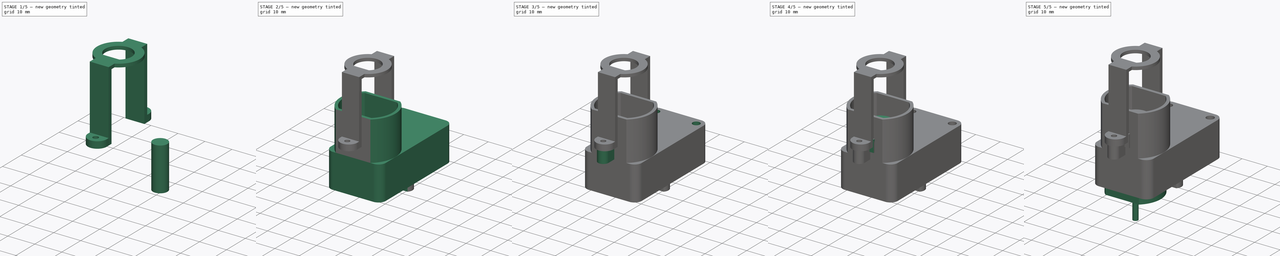
[diagram: build sequence overview — one tinted view per stage of 5, left to right]
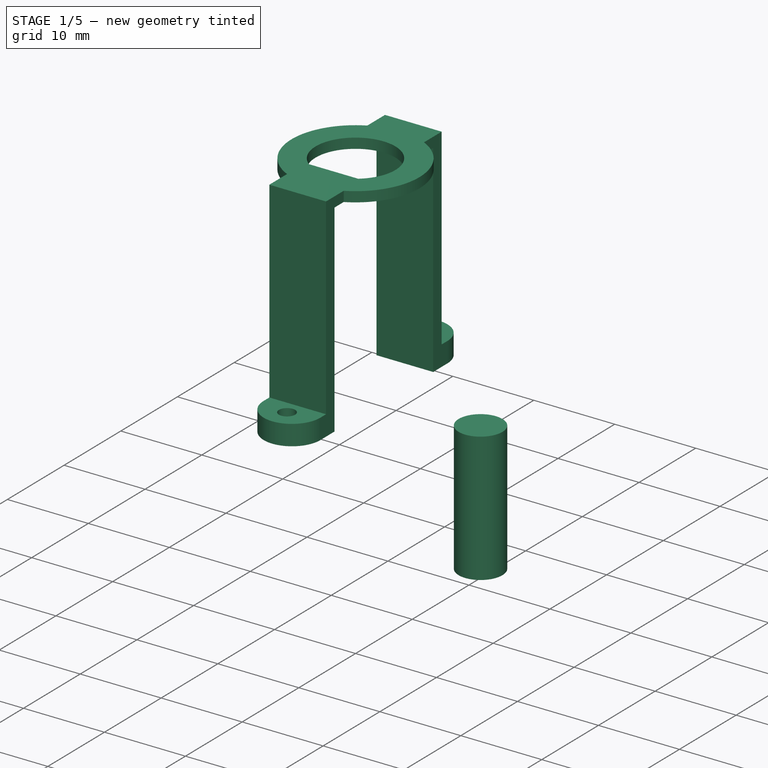
[diagram: stage 1 of 5 — iso view after this stage's code; geometry added in this stage tinted green]
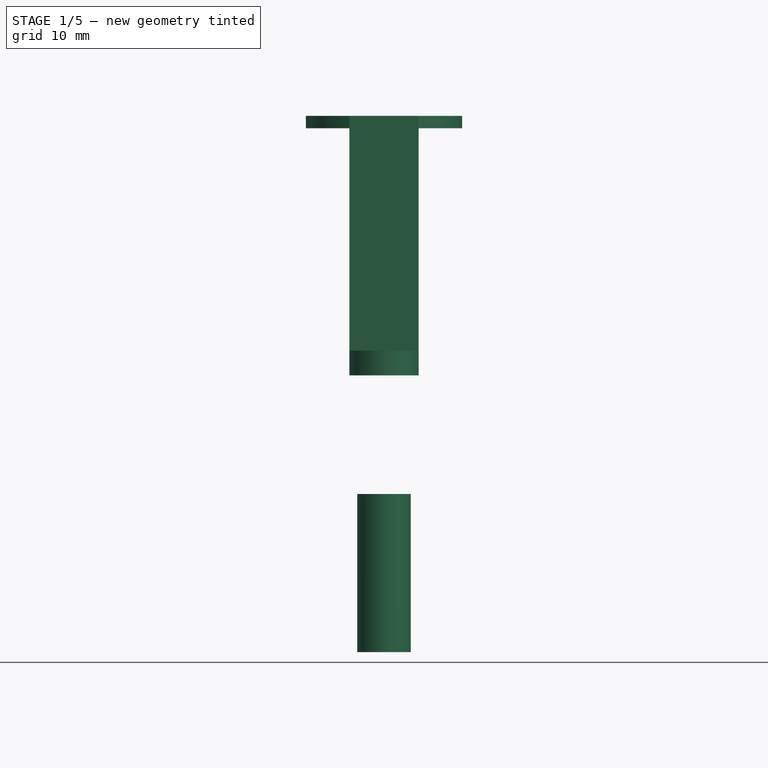
[diagram: stage 1 of 5 — front view after this stage's code; geometry added in this stage tinted green]
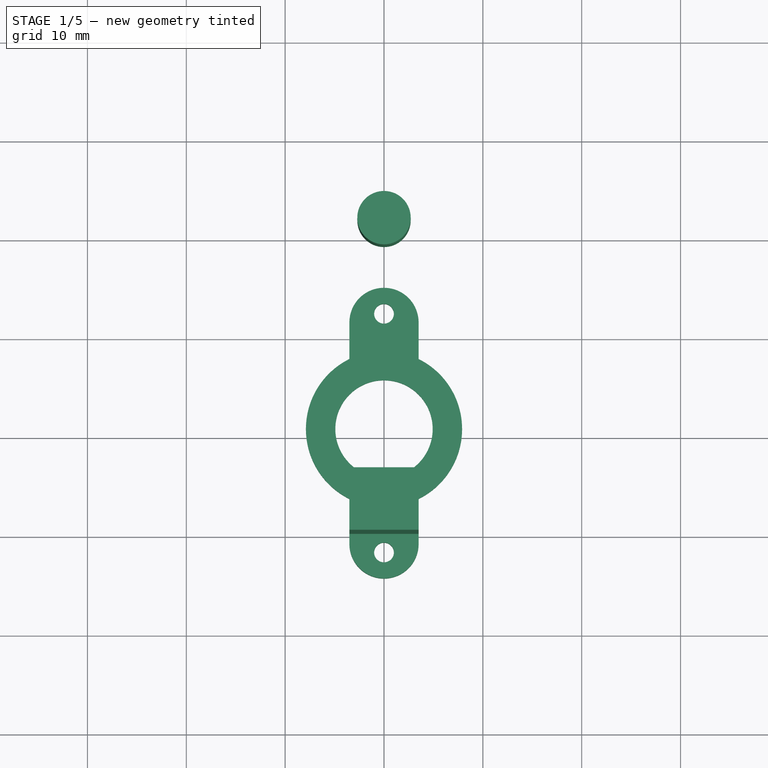
[diagram: stage 1 of 5 — top view after this stage's code; geometry added in this stage tinted green]
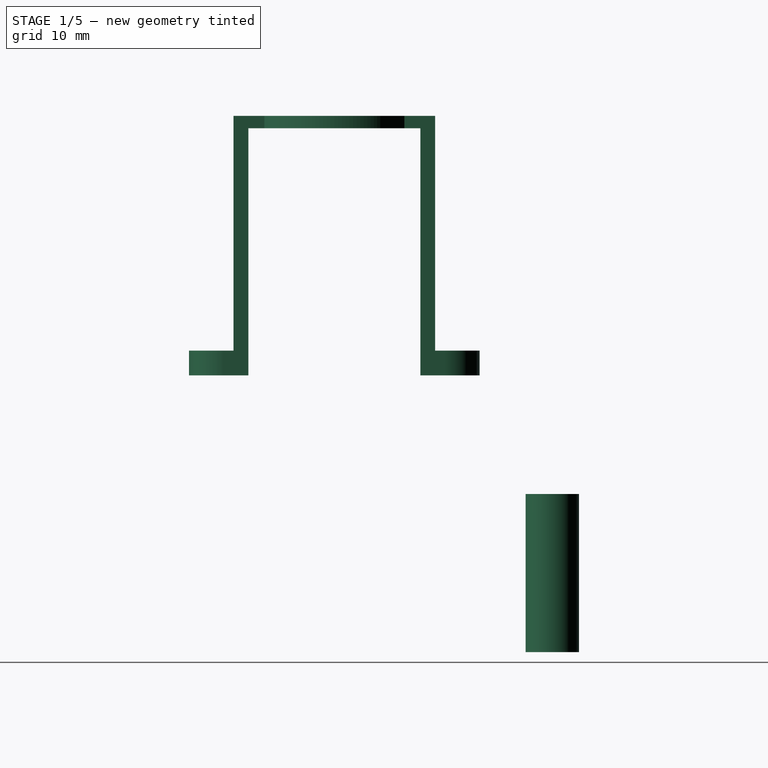
[diagram: stage 1 of 5 — right view after this stage's code; geometry added in this stage tinted green]
FCSTD DOCUMENT  (FreeCAD 0.21R29865 (Git))
Label: Yellow_gearmotor_L
License: Creative Commons Attribution-NonCommercial-ShareAlike
LicenseURL: http://creativecommons.org/licenses/by-nc-sa/4.0/
objects: Sketcher::SketchObject×15, PartDesign::Pad×10, PartDesign::Body×6, PartDesign::Pocket×5, App::DocumentObjectGroup×2, PartDesign::Fillet×1, App::Part×1
note: 53 computed .brp shape members not serialized (recipe doc carries the construction recipe); baked Part::Feature solids carry a one-line shape summary decoded from their .brp

FEATURE [PartDesign::Body] Body003  label="Yellow"
  Group = -> [Sketch005,Pad004,Sketch006,Pad005,Sketch007,Pad006,Sketch008,Pocket001,Sketch009,Pocket002,Sketch010,Pad007]
  Origin = -> Origin004
  Tip = -> Pad007
FEATURE [Sketcher::SketchObject] Sketch011
  FullyConstrained = true
  MapMode = 5
  Support = -> [XY_Plane005]
  sketch-geometry (1):
    g0: Circle CenterX=0 CenterY=22.05 CenterZ=0 NormalX=0 NormalY=0 NormalZ=1 AngleXU=0 Radius=2.7
  constraints (3):
    c: PointOnObject(g0,g-2)
    c: Diameter(g0) = 5.4
    c: DistanceY(g0) = 22.05
FEATURE [PartDesign::Pad] Pad008
  Direction = (0,0,1)
  Length = 16
  Length2 = 10
  Profile = -> Sketch011
  ReferenceAxis = -> Sketch011 [N_Axis]
  Reversed = true
  Type = 0
FEATURE [PartDesign::Body] Body004  label="Pink"
  Group = -> [Sketch011,Pad008,Sketch012,Pocket003]
  Origin = -> Origin005
  Tip = -> Pocket003
FEATURE [Sketcher::SketchObject] Sketch013
  FullyConstrained = true
  MapMode = 5
  Placement = pos=(0,0,0) rot=(0.57735,0.57735,0.57735;2.0944rad)
  Support = -> [YZ_Plane006]
  sketch-geometry (14):
    g0: LineSegment StartX=-8.7 StartY=37 StartZ=0 EndX=-8.7 EndY=12 EndZ=0
    g1: LineSegment StartX=-8.7 StartY=12 StartZ=0 EndX=-14.7 EndY=12 EndZ=0
    g2: LineSegment StartX=-14.7 StartY=12 StartZ=0 EndX=-14.7 EndY=14.5 EndZ=0
    g3: LineSegment StartX=-14.7 StartY=14.5 StartZ=0 EndX=-10.2 EndY=14.5 EndZ=0
    g4: LineSegment StartX=-10.2 StartY=14.5 StartZ=0 EndX=-10.2 EndY=38.25 EndZ=0
    g5: LineSegment StartX=-10.2 StartY=38.25 StartZ=0 EndX=10.2 EndY=38.25 EndZ=0
    g6: LineSegment StartX=10.2 StartY=38.25 StartZ=0 EndX=10.2 EndY=14.5 EndZ=0
    g7: LineSegment StartX=10.2 StartY=14.5 StartZ=0 EndX=14.7 EndY=14.5 EndZ=0
    g8: LineSegment StartX=14.7 StartY=14.5 StartZ=0 EndX=14.7 EndY=12 EndZ=0
    g9: LineSegment StartX=14.7 StartY=12 StartZ=0 EndX=8.7 EndY=12 EndZ=0
    g10: LineSegment StartX=8.7 StartY=12 StartZ=0 EndX=8.7 EndY=37 EndZ=0
    g11: LineSegment StartX=8.7 StartY=37 StartZ=0 EndX=-8.7 EndY=37 EndZ=0
    g12: LineSegment StartX=-10.2 StartY=14.5 StartZ=0 EndX=-8.7 EndY=14.5 EndZ=0
    g13: LineSegment StartX=10.2 StartY=14.5 StartZ=0 EndX=8.7 EndY=14.5 EndZ=0
  constraints (41):
    c: Vertical(g0)
    c: Coincident(g0,g1)
    c: Horizontal(g1)
    c: Coincident(g1,g2)
    c: Coincident(g2,g3)
    c: Horizontal(g3)
    c: Coincident(g3,g4)
    c: Vertical(g4)
    c: Coincident(g4,g5)
    c: Horizontal(g5)
    c: Coincident(g5,g6)
    c: Vertical(g6)
    c: Coincident(g6,g7)
    c: Horizontal(g7)
    c: Coincident(g7,g8)
    c: Vertical(g8)
    c: Coincident(g8,g9)
    c: Horizontal(g9)
    c: Coincident(g9,g10)
    c: Vertical(g10)
    c: Coincident(g10,g11)
    c: Coincident(g11,g0)
    c: Horizontal(g11)
    c: Vertical(g2)
    c: Equal(g2,g8)
    c: Equal(g9,g1)
    c: Equal(g3,g7)
    c: Symmetric(g9,g0,g-2)
    c: DistanceY(g8,g8) = 2.5
    c: Coincident(g12,g3)
    c: PointOnObject(g12,g0)
    c: Horizontal(g12)
    c: Coincident(g13,g6)
    c: PointOnObject(g13,g10)
    c: Horizontal(g13)
    c: DistanceX(g12,g12) = 1.5
    c: DistanceX(g0,g9) = 17.4
    c: DistanceY(g10) = 37
    c: DistanceY(g10,g5) = 1.25
    c: DistanceY(g8) = 12
    c: DistanceX(g9,g9) = 6
FEATURE [PartDesign::Pad] Pad009
  Direction = (1,-2e-16,3e-16)
  Length = 15.8
  Length2 = 10
  Midplane = true
  Placement = pos=(0,0,0) rot=(0.57735,0.57735,0.57735;2.0944rad)
  Profile = -> Sketch013
  ReferenceAxis = -> Sketch013 [N_Axis]
  Type = 0
FEATURE [Sketcher::SketchObject] Sketch014
  ExternalGeometry = -> [Pad009]
  FullyConstrained = true
  MapMode = 5
  Placement = pos=(-1.07e-14,1.68e-14,38.25) rot=(0,0,-1;1.5708rad)
  Support = -> [Pad009]
  sketch-geometry (17):
    g0: ArcOfCircle CenterX=0 CenterY=0 CenterZ=0 NormalX=0 NormalY=0 NormalZ=1 AngleXU=0 Radius=4.925 StartAngle=0.665186 EndAngle=5.618
    g1: LineSegment StartX=3.875 StartY=-3.03974 StartZ=0 EndX=3.875 EndY=3.03974 EndZ=0
    g2: GeomPoint X=-4.925 Y=0 Z=0
    g3: ArcOfCircle CenterX=0 CenterY=0 CenterZ=0 NormalX=0 NormalY=0 NormalZ=1 AngleXU=0 Radius=7.9 StartAngle=3.60058 EndAngle=5.8242
    g4: LineSegment StartX=7.08237 StartY=3.5 StartZ=0 EndX=11.2 EndY=3.5 EndZ=0
    g5: LineSegment StartX=14.7 StartY=7.9 StartZ=0 EndX=-14.7 EndY=7.9 EndZ=0
    g6: LineSegment StartX=-11.2 StartY=3.5 StartZ=0 EndX=-7.08237 EndY=3.5 EndZ=0
    g7: LineSegment StartX=7.08237 StartY=-3.5 StartZ=0 EndX=11.2 EndY=-3.5 EndZ=0
    g8: LineSegment StartX=14.7 StartY=-7.9 StartZ=0 EndX=-14.7 EndY=-7.9 EndZ=0
    g9: LineSegment StartX=-11.2 StartY=-3.5 StartZ=0 EndX=-7.08237 EndY=-3.5 EndZ=0
    g10: ArcOfCircle CenterX=0 CenterY=0 CenterZ=0 NormalX=0 NormalY=0 NormalZ=1 AngleXU=0 Radius=7.9 StartAngle=0.458985 EndAngle=2.68261
    g11: ArcOfCircle CenterX=-11.2 CenterY=0 CenterZ=0 NormalX=0 NormalY=0 NormalZ=1 AngleXU=0 Radius=3.5 StartAngle=1.5708 EndAngle=4.71239
    g12: ArcOfCircle CenterX=11.2 CenterY=0 CenterZ=0 NormalX=0 NormalY=0 NormalZ=1 AngleXU=0 Radius=3.5 StartAngle=4.71239 EndAngle=7.85398
    g13: LineSegment StartX=14.7 StartY=-7.9 StartZ=0 EndX=14.7 EndY=7.9 EndZ=0
    g14: LineSegment StartX=-14.7 StartY=7.9 StartZ=0 EndX=-14.7 EndY=-7.9 EndZ=0
    g15: Circle CenterX=-12.075 CenterY=0 CenterZ=0 NormalX=0 NormalY=0 NormalZ=1 AngleXU=0 Radius=1
    g16: Circle CenterX=12.075 CenterY=0 CenterZ=0 NormalX=0 NormalY=0 NormalZ=1 AngleXU=0 Radius=1
  constraints (48):
    c: Coincident(g0,g-1)
    c: Vertical(g1)
    c: Coincident(g0,g1)
    c: Coincident(g0,g1)
    c: Radius(g0) = 4.925
    c: PointOnObject(g2,g0)
    c: PointOnObject(g2,g-1)
    c: DistanceX(g2,g0) = 8.8
    c: Coincident(g3,g0)
    c: Tangent(g3,g-3)
    c: Horizontal(g4)
    c: Horizontal(g5)
    c: Horizontal(g6)
    c: Horizontal(g7)
    c: Horizontal(g8)
    c: Horizontal(g9)
    c: Equal(g8,g5)
    c: Horizontal(g4,g6)
    c: Horizontal(g7,g9)
    c: Coincident(g10,g6)
    c: Coincident(g3,g9)
    c: Equal(g3,g10)
    c: Coincident(g3,g7)
    c: Coincident(g10,g4)
    c: Coincident(g3,g10)
    c: PointOnObject(g11,g-1)
    c: Tangent(g11,g-6)
    c: Tangent(g6,g11) = 1.5708
    c: Coincident(g9,g11)
    c: PointOnObject(g12,g-1)
    c: Tangent(g12,g-5)
    c: Tangent(g4,g12) = 1.5708
    c: Coincident(g7,g12)
    c: Coincident(g13,g8)
    c: Coincident(g13,g5)
    c: Vertical(g13)
    c: Coincident(g14,g5)
    c: Coincident(g14,g8)
    c: Vertical(g7,g12)
    c: DistanceY(g7,g4) = 7
    c: Coincident(g5,g-6)
    c: Coincident(g8,g-5)
    c: DistanceX(g11,g12) = 22.4
    c: PointOnObject(g15,g-1)
    c: Equal(g16,g15)
    c: DistanceX(g15,g16) = 24.15
    c: Symmetric(g15,g16,g-2)
    c: Diameter(g15) = 2
FEATURE [PartDesign::Pocket] Pocket004
  BaseFeature = -> Pad009
  Direction = (4e-16,-6e-16,-1)
  Length = 5
  Length2 = 5
  Placement = pos=(0,0,0) rot=(0.57735,0.57735,0.57735;2.0944rad)
  Profile = -> Sketch014
  ReferenceAxis = -> Sketch014 [N_Axis]
  Type = 1
FEATURE [PartDesign::Body] Body005  label="White"
  Group = -> [Sketch013,Pad009,Sketch014,Pocket004]
  Origin = -> Origin006
  Tip = -> Pocket004
FEATURE [App::DocumentObjectGroup] Group001  label="Box"
  Group = -> [Body003,Body004,Body005]
FEATURE [App::Part] Part  label="Yellow gearmotor L shape"
  Group = -> [Body,Body001,Group,Body002,Group001,Body003,Body004,Body005]
  Origin = -> Origin
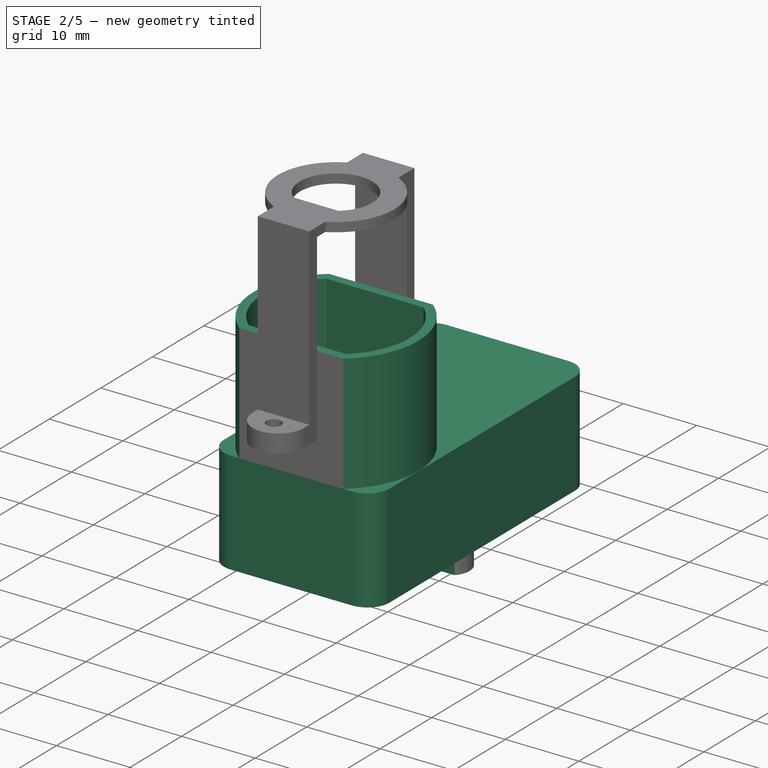
[diagram: stage 2 of 5 — iso view after this stage's code; geometry added in this stage tinted green]
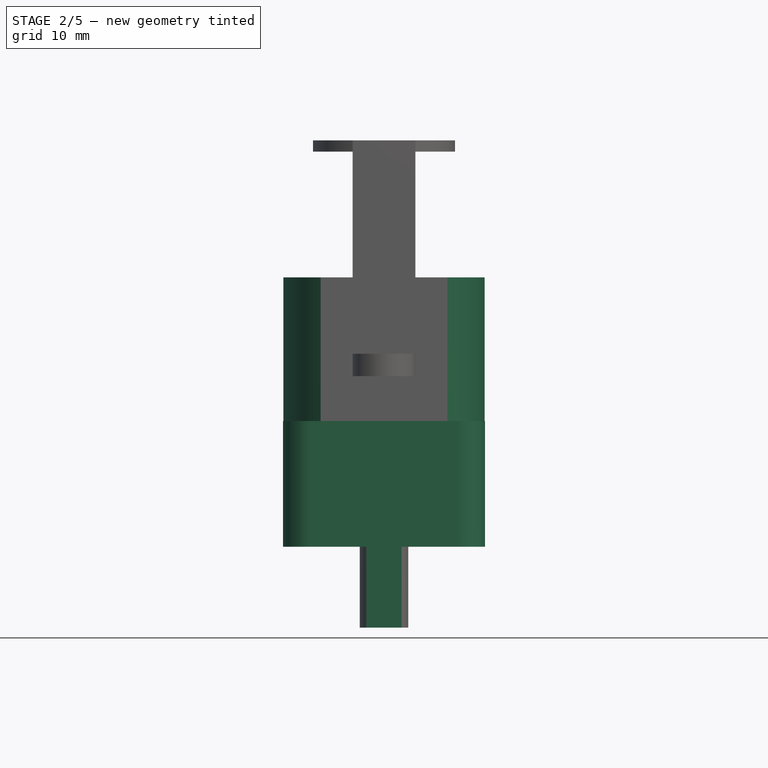
[diagram: stage 2 of 5 — front view after this stage's code; geometry added in this stage tinted green]
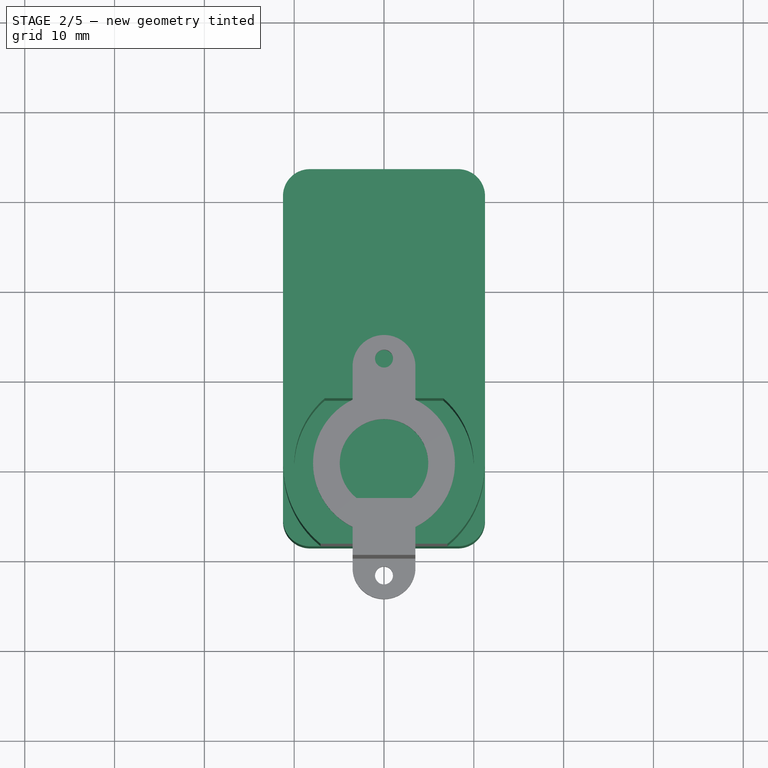
[diagram: stage 2 of 5 — top view after this stage's code; geometry added in this stage tinted green]
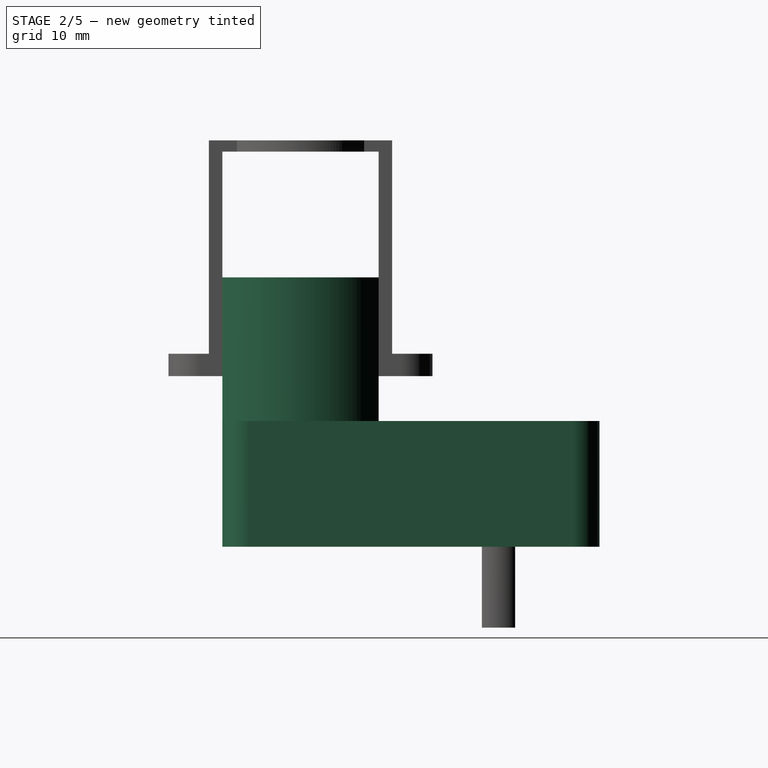
[diagram: stage 2 of 5 — right view after this stage's code; geometry added in this stage tinted green]
FEATURE [PartDesign::Body] Body001  label="Plastic"
  Group = -> [Sketch001,Pad001,Sketch003,Pad003,Sketch004,Fillet,Pocket]
  Origin = -> Origin002
  Placement = pos=(0,0,22) rot=(0,0,1;0rad)
  Tip = -> Fillet
FEATURE [App::DocumentObjectGroup] Group  label="Motor"
  Group = -> [Body,Body001,Body002]
FEATURE [Sketcher::SketchObject] Sketch005
  FullyConstrained = true
  MapMode = 5
  Support = -> [XY_Plane004]
  sketch-geometry (11):
    g0: ArcOfCircle CenterX=-8.25 CenterY=30.3 CenterZ=0 NormalX=0 NormalY=0 NormalZ=1 AngleXU=0 Radius=3 StartAngle=1.5708 EndAngle=3.14159
    g1: LineSegment StartX=-8.25 StartY=33.3 StartZ=0 EndX=8.25 EndY=33.3 EndZ=0
    g2: ArcOfCircle CenterX=8.25 CenterY=30.3 CenterZ=0 NormalX=0 NormalY=0 NormalZ=1 AngleXU=0 Radius=3 StartAngle=0 EndAngle=1.5708
    g3: LineSegment StartX=11.25 StartY=30.3 StartZ=0 EndX=11.25 EndY=-5.7 EndZ=0
    g4: ArcOfCircle CenterX=8.25 CenterY=-5.7 CenterZ=0 NormalX=0 NormalY=0 NormalZ=1 AngleXU=0 Radius=3 StartAngle=4.71239 EndAngle=6.28319
    g5: LineSegment StartX=8.25 StartY=-8.7 StartZ=0 EndX=-8.25 EndY=-8.7 EndZ=0
    g6: ArcOfCircle CenterX=-8.25 CenterY=-5.7 CenterZ=0 NormalX=0 NormalY=0 NormalZ=1 AngleXU=0 Radius=3 StartAngle=3.14159 EndAngle=4.71239
    g7: LineSegment StartX=-11.25 StartY=-5.7 StartZ=0 EndX=-11.25 EndY=30.3 EndZ=0
    g8: GeomPoint X=-11.25 Y=33.3 Z=0
    g9: GeomPoint X=11.25 Y=-8.7 Z=0
    g10: GeomPoint X=0 Y=12.3 Z=0
  constraints (25):
    c: Tangent(g0,g1) = 1.5708
    c: Tangent(g1,g2) = 1.5708
    c: Tangent(g2,g3) = 1.5708
    c: Tangent(g3,g4) = 1.5708
    c: Tangent(g4,g5) = 1.5708
    c: Tangent(g5,g6) = 1.5708
    c: Tangent(g6,g7) = 1.5708
    c: Tangent(g7,g0) = 1.5708
    c: Horizontal(g1)
    c: Horizontal(g5)
    c: Vertical(g3)
    c: Vertical(g7)
    c: Equal(g0,g2)
    c: Equal(g2,g4)
    c: Equal(g4,g6)
    c: PointOnObject(g8,g1)
    c: PointOnObject(g8,g7)
    c: PointOnObject(g9,g3)
    c: PointOnObject(g9,g5)
    c: PointOnObject(g10,g-2)
    c: Symmetric(g0,g4,g10)
    c: DistanceY(g5,g0) = 42
    c: DistanceX(g6,g3) = 22.5
    c: Radius(g2) = 3
    c: DistanceY(g4) = -8.7
FEATURE [PartDesign::Pad] Pad004
  Direction = (0,0,1)
  Length = 14
  Length2 = 10
  Midplane = true
  Profile = -> Sketch005
  ReferenceAxis = -> Sketch005 [N_Axis]
  Type = 0
FEATURE [Sketcher::SketchObject] Sketch006
  AttachmentOffset = pos=(0,0,7) rot=(0,0,1;0rad)
  ExternalGeometry = -> [Pad004]
  FullyConstrained = true
  MapMode = 5
  Placement = pos=(0,0,7) rot=(0,0,1;0rad)
  Support = -> [XY_Plane004]
  sketch-geometry (8):
    g0: ArcOfCircle CenterX=0 CenterY=4.60974e-11 CenterZ=0 NormalX=0 NormalY=0 NormalZ=1 AngleXU=0 Radius=10 StartAngle=2.29353 EndAngle=3.98965
    g1: LineSegment StartX=-6.61438 StartY=7.5 StartZ=0 EndX=6.61438 EndY=7.5 EndZ=0
    g2: LineSegment StartX=-6.61438 StartY=-7.5 StartZ=0 EndX=6.61438 EndY=-7.5 EndZ=0
    g3: ArcOfCircle CenterX=0 CenterY=4.60974e-11 CenterZ=0 NormalX=0 NormalY=0 NormalZ=1 AngleXU=0 Radius=10 StartAngle=5.43512 EndAngle=7.13125
    g4: LineSegment StartX=-7.05337 StartY=8.7 StartZ=0 EndX=7.05337 EndY=8.7 EndZ=0
    g5: LineSegment StartX=7.05337 StartY=-8.7 StartZ=0 EndX=-7.05337 EndY=-8.7 EndZ=0
    g6: ArcOfCircle CenterX=0 CenterY=4.60974e-11 CenterZ=0 NormalX=0 NormalY=0 NormalZ=1 AngleXU=0 Radius=11.2 StartAngle=2.25205 EndAngle=4.03114
    g7: ArcOfCircle CenterX=0 CenterY=4.60974e-11 CenterZ=0 NormalX=0 NormalY=0 NormalZ=1 AngleXU=0 Radius=11.2 StartAngle=5.39364 EndAngle=7.17273
  constraints (26):
    c: PointOnObject(g0,g-2)
    c: Diameter(g0) = 20
    c: Horizontal(g1)
    c: Horizontal(g2)
    c: Coincident(g3,g1)
    c: Coincident(g0,g1)
    c: Equal(g0,g3)
    c: Coincident(g0,g2)
    c: Coincident(g3,g2)
    c: Coincident(g0,g3)
    c: Equal(g2,g1)
    c: DistanceY(g2,g1) = 15
    c: Horizontal(g4)
    c: Horizontal(g5)
    c: Equal(g5,g4)
    c: DistanceY(g5,g4) = 17.4
    c: Coincident(g6,g0)
    c: Coincident(g7,g4)
    c: Coincident(g6,g4)
    c: Equal(g6,g7)
    c: Coincident(g6,g5)
    c: Coincident(g7,g5)
    c: Coincident(g6,g7)
    c: Radius(g7) = 11.2
    c: PointOnObject(g5,g-3)
    c: DistanceY(g0,g-1) = -4.60974e-11
FEATURE [PartDesign::Pad] Pad005
  BaseFeature = -> Pad004
  Direction = (0,0,1)
  Length = 16
  Length2 = 10
  Profile = -> Sketch006
  ReferenceAxis = -> Sketch006 [N_Axis]
  Type = 0
FEATURE [Sketcher::SketchObject] Sketch012
  ExternalGeometry = -> [Pad008]
  FullyConstrained = true
  MapMode = 5
  Placement = pos=(0,0,-16) rot=(1,0,0;3.14159rad)
  Support = -> [Pad008]
  sketch-geometry (11):
    g0: Circle CenterX=0 CenterY=-22.05 CenterZ=0 NormalX=0 NormalY=0 NormalZ=1 AngleXU=0 Radius=1
    g1: LineSegment StartX=-2.5 StartY=-19 StartZ=0 EndX=-2.5 EndY=-20.2 EndZ=0
    g2: LineSegment StartX=-2.5 StartY=-20.2 StartZ=0 EndX=2.5 EndY=-20.2 EndZ=0
    g3: LineSegment StartX=2.5 StartY=-20.2 StartZ=0 EndX=2.5 EndY=-19 EndZ=0
    g4: LineSegment StartX=2.5 StartY=-19 StartZ=0 EndX=-2.5 EndY=-19 EndZ=0
    g5: GeomPoint X=0 Y=-19.6 Z=0
    g6: LineSegment StartX=-2.5 StartY=-23.9 StartZ=0 EndX=-2.5 EndY=-25.1 EndZ=0
    g7: LineSegment StartX=-2.5 StartY=-25.1 StartZ=0 EndX=2.5 EndY=-25.1 EndZ=0
    g8: LineSegment StartX=2.5 StartY=-25.1 StartZ=0 EndX=2.5 EndY=-23.9 EndZ=0
    g9: LineSegment StartX=2.5 StartY=-23.9 StartZ=0 EndX=-2.5 EndY=-23.9 EndZ=0
    g10: GeomPoint X=0 Y=-24.5 Z=0
  constraints (29):
    c: Coincident(g1,g2)
    c: Coincident(g2,g3)
    c: Coincident(g3,g4)
    c: Coincident(g4,g1)
    c: Horizontal(g2)
    c: Horizontal(g4)
    c: Vertical(g1)
    c: Vertical(g3)
    c: Symmetric(g2,g1,g5)
    c: PointOnObject(g5,g-2)
    c: Coincident(g6,g7)
    c: Coincident(g7,g8)
    c: Coincident(g8,g9)
    c: Coincident(g9,g6)
    c: Horizontal(g7)
    c: Horizontal(g9)
    c: Vertical(g6)
    c: Vertical(g8)
    c: Symmetric(g7,g6,g10)
    c: PointOnObject(g10,g-2)
    c: Equal(g3,g8)
    c: Equal(g4,g7)
    c: Diameter(g0) = 2
    c: DistanceY(g0,g2) = 1.85
    c: DistanceY(g8,g0) = 1.85
    c: Coincident(g-3,g0)
    c: DistanceY(g3,g3) = 1.2
    c: DistanceX(g4,g4) = 5
    c: DistanceY(g6,g1) = 3.7
FEATURE [PartDesign::Pocket] Pocket003
  BaseFeature = -> Pad008
  Direction = (0,0,1)
  Length = 9
  Length2 = 5
  Profile = -> Sketch012
  ReferenceAxis = -> Sketch012 [N_Axis]
  Type = 0
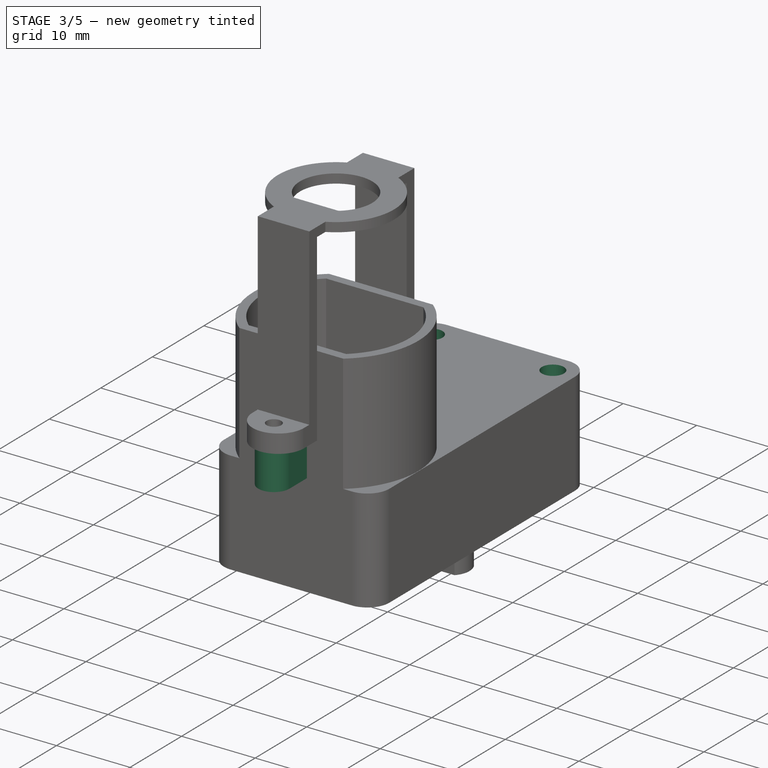
[diagram: stage 3 of 5 — iso view after this stage's code; geometry added in this stage tinted green]
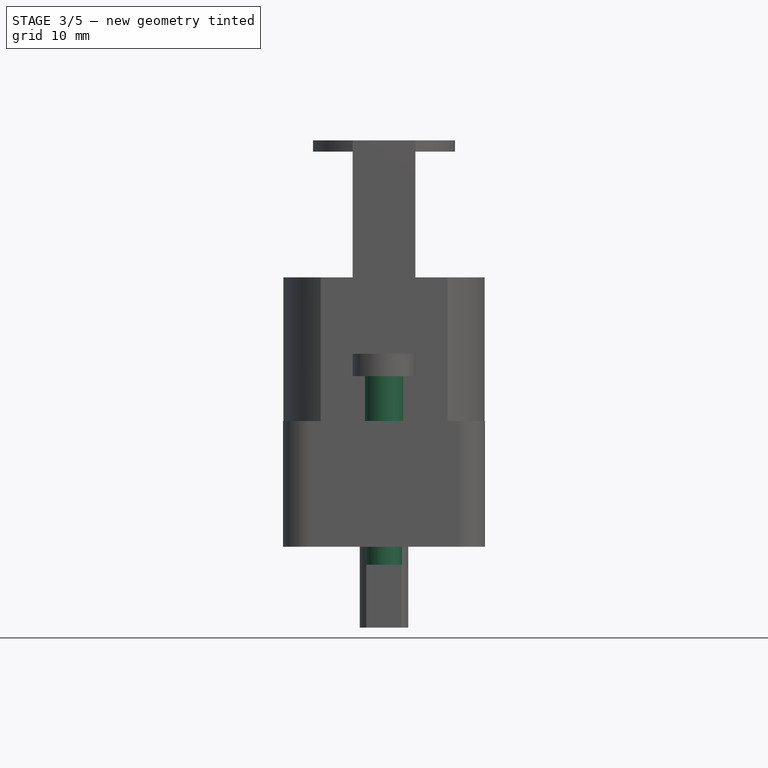
[diagram: stage 3 of 5 — front view after this stage's code; geometry added in this stage tinted green]
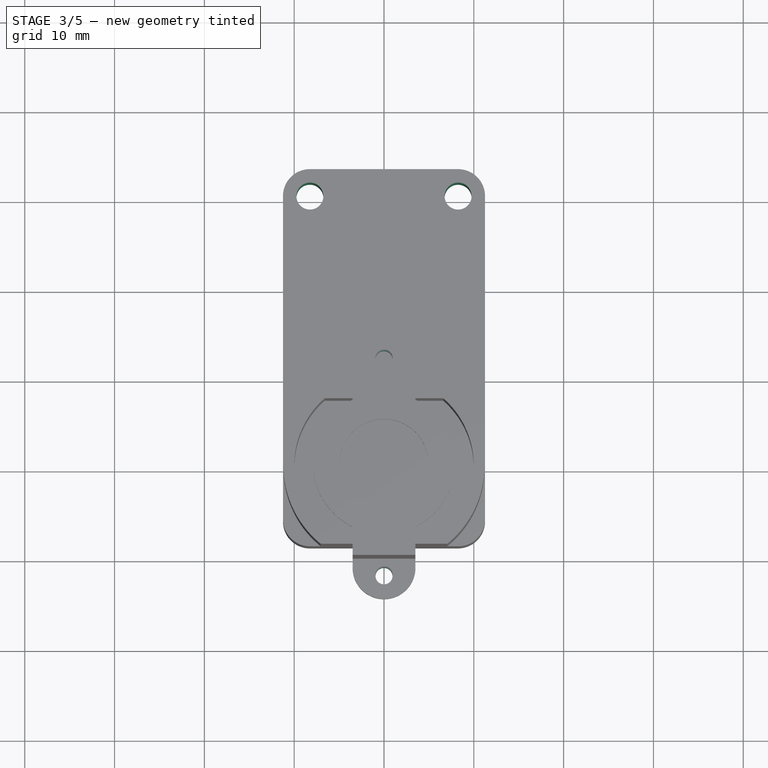
[diagram: stage 3 of 5 — top view after this stage's code; geometry added in this stage tinted green]
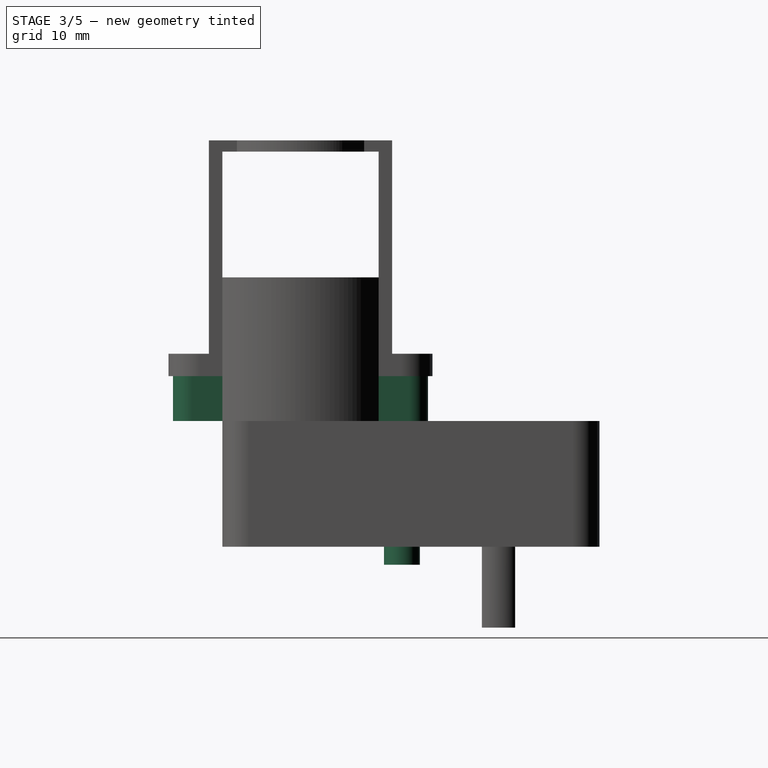
[diagram: stage 3 of 5 — right view after this stage's code; geometry added in this stage tinted green]
FEATURE [Sketcher::SketchObject] Sketch007
  AttachmentOffset = pos=(0,0,7) rot=(0,0,1;0rad)
  ExternalGeometry = -> [Pad005]
  FullyConstrained = true
  MapMode = 5
  Placement = pos=(0,0,7) rot=(0,0,1;0rad)
  Support = -> [XY_Plane004]
  sketch-geometry (10):
    g0: Circle CenterX=0 CenterY=-12.075 CenterZ=0 NormalX=0 NormalY=0 NormalZ=1 AngleXU=0 Radius=0.95
    g1: ArcOfCircle CenterX=0 CenterY=-12.075 CenterZ=0 NormalX=0 NormalY=0 NormalZ=1 AngleXU=0 Radius=2.125 StartAngle=3.14159 EndAngle=6.28319
    g2: LineSegment StartX=2.125 StartY=-12.075 StartZ=0 EndX=2.125 EndY=-8.7 EndZ=0
    g3: LineSegment StartX=2.125 StartY=-8.7 StartZ=0 EndX=-2.125 EndY=-8.7 EndZ=0
    g4: LineSegment StartX=-2.125 StartY=-8.7 StartZ=0 EndX=-2.125 EndY=-12.075 EndZ=0
    g5: Circle CenterX=0 CenterY=12.075 CenterZ=0 NormalX=0 NormalY=0 NormalZ=1 AngleXU=0 Radius=0.95
    g6: ArcOfCircle CenterX=0 CenterY=12.075 CenterZ=0 NormalX=0 NormalY=0 NormalZ=1 AngleXU=0 Radius=2.125 StartAngle=4e-16 EndAngle=3.14159
    g7: LineSegment StartX=-2.125 StartY=12.075 StartZ=0 EndX=-2.125 EndY=8.7 EndZ=0
    g8: LineSegment StartX=-2.125 StartY=8.7 StartZ=0 EndX=2.125 EndY=8.7 EndZ=0
    g9: LineSegment StartX=2.125 StartY=8.7 StartZ=0 EndX=2.125 EndY=12.075 EndZ=0
  constraints (28):
    c: PointOnObject(g0,g-2)
    c: Coincident(g1,g0)
    c: PointOnObject(g2,g-4)
    c: Vertical(g2)
    c: Coincident(g2,g3)
    c: PointOnObject(g3,g-4)
    c: Coincident(g3,g4)
    c: Vertical(g4)
    c: Tangent(g1,g2) = -1.5708
    c: Diameter(g0) = 1.9
    c: Radius(g1) = 2.125
    c: DistanceY(g2,g2) = 3.375
    c: PointOnObject(g5,g-2)
    c: Coincident(g6,g5)
    c: PointOnObject(g7,g-3)
    c: Coincident(g7,g8)
    c: PointOnObject(g8,g-3)
    c: Coincident(g8,g9)
    c: Vertical(g7)
    c: Equal(g5,g0)
    c: Equal(g1,g6)
    c: Vertical(g9)
    c: Coincident(g6,g7)
    c: Tangent(g6,g9) = -1.5708
    c: Equal(g2,g9)
    c: Tangent(g1,g4) = -1.5708
    c: Horizontal(g6,g6)
    c: DistanceY(g0,g5) = 24.15
FEATURE [PartDesign::Pad] Pad006
  BaseFeature = -> Pad005
  Direction = (0,0,1)
  Length = 5
  Length2 = 10
  Profile = -> Sketch007
  ReferenceAxis = -> Sketch007 [N_Axis]
  Type = 0
FEATURE [Sketcher::SketchObject] Sketch008
  ExternalGeometry = -> [Pad006]
  FullyConstrained = true
  MapMode = 5
  Support = -> [XY_Plane004]
  sketch-geometry (1):
    g0: Circle CenterX=0 CenterY=22.05 CenterZ=0 NormalX=0 NormalY=0 NormalZ=1 AngleXU=0 Radius=2.75
  constraints (4):
    c: PointOnObject(g0,g-2)
    c: Diameter(g0) = 5.5
    c: DistanceY(g0,g-3) = 11.25
    c: DistanceY(g0) = 22.05
FEATURE [PartDesign::Pocket] Pocket001
  BaseFeature = -> Pad006
  Direction = (0,0,-1)
  Length = 5
  Length2 = 5
  Profile = -> Sketch008
  ReferenceAxis = -> Sketch008 [N_Axis]
  Type = 2
FEATURE [Sketcher::SketchObject] Sketch009
  ExternalGeometry = -> [Pocket001]
  FullyConstrained = true
  MapMode = 5
  Support = -> [XY_Plane004]
  sketch-geometry (2):
    g0: Circle CenterX=-8.25 CenterY=30.3 CenterZ=0 NormalX=0 NormalY=0 NormalZ=1 AngleXU=0 Radius=1.5
    g1: Circle CenterX=8.25 CenterY=30.3 CenterZ=0 NormalX=0 NormalY=0 NormalZ=1 AngleXU=0 Radius=1.5
  constraints (4):
    c: Coincident(g0,g-3)
    c: Coincident(g1,g-4)
    c: Equal(g1,g0)
    c: Diameter(g1) = 3
FEATURE [PartDesign::Pocket] Pocket002
  BaseFeature = -> Pocket001
  Direction = (0,0,-1)
  Length = 5
  Length2 = 5
  Midplane = true
  Profile = -> Sketch009
  ReferenceAxis = -> Sketch009 [N_Axis]
  Type = 1
FEATURE [Sketcher::SketchObject] Sketch010
  AttachmentOffset = pos=(0,0,-7) rot=(0,0,1;0rad)
  ExternalGeometry = -> [Pocket002]
  FullyConstrained = true
  MapMode = 5
  Placement = pos=(0,0,-7) rot=(0,0,1;0rad)
  Support = -> [XY_Plane004]
  sketch-geometry (1):
    g0: Circle CenterX=0 CenterY=11.3 CenterZ=0 NormalX=0 NormalY=0 NormalZ=1 AngleXU=0 Radius=2
  constraints (3):
    c: PointOnObject(g0,g-2)
    c: Diameter(g0) = 4
    c: DistanceY(g-3,g0) = 20
FEATURE [PartDesign::Pad] Pad007
  BaseFeature = -> Pocket002
  Direction = (0,0,1)
  Length = 2
  Length2 = 10
  Profile = -> Sketch010
  ReferenceAxis = -> Sketch010 [N_Axis]
  Reversed = true
  Type = 0
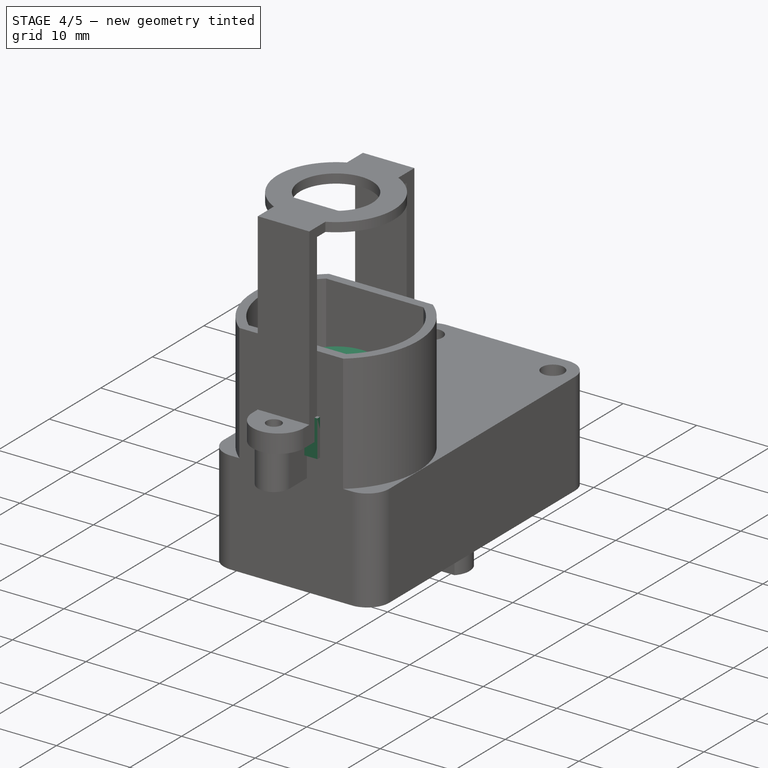
[diagram: stage 4 of 5 — iso view after this stage's code; geometry added in this stage tinted green]
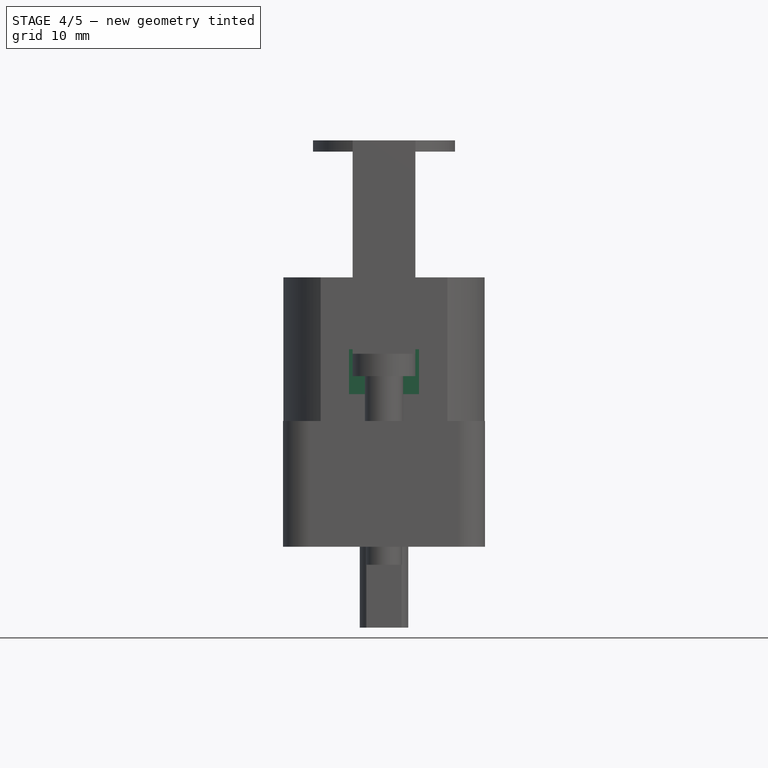
[diagram: stage 4 of 5 — front view after this stage's code; geometry added in this stage tinted green]
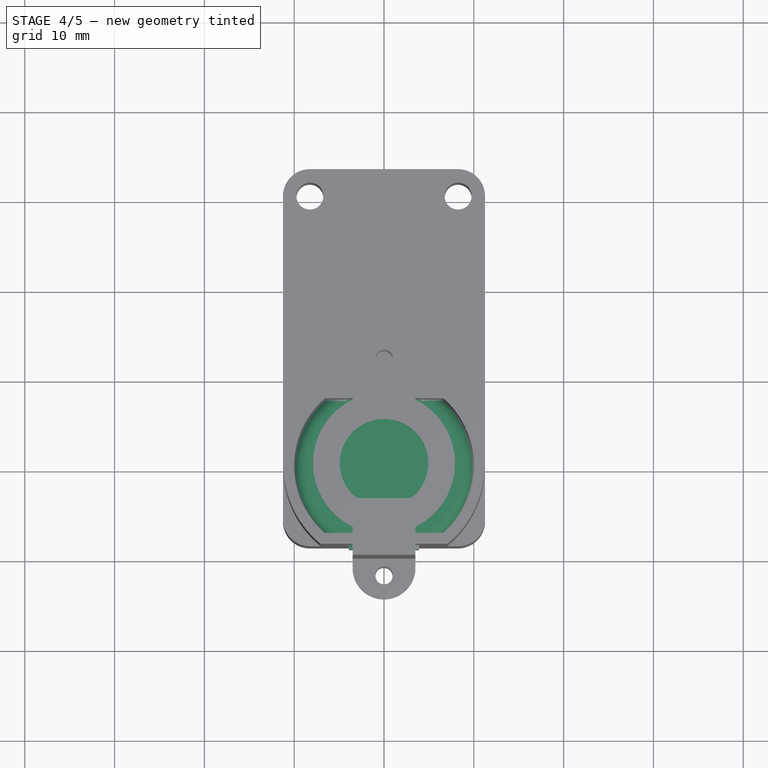
[diagram: stage 4 of 5 — top view after this stage's code; geometry added in this stage tinted green]
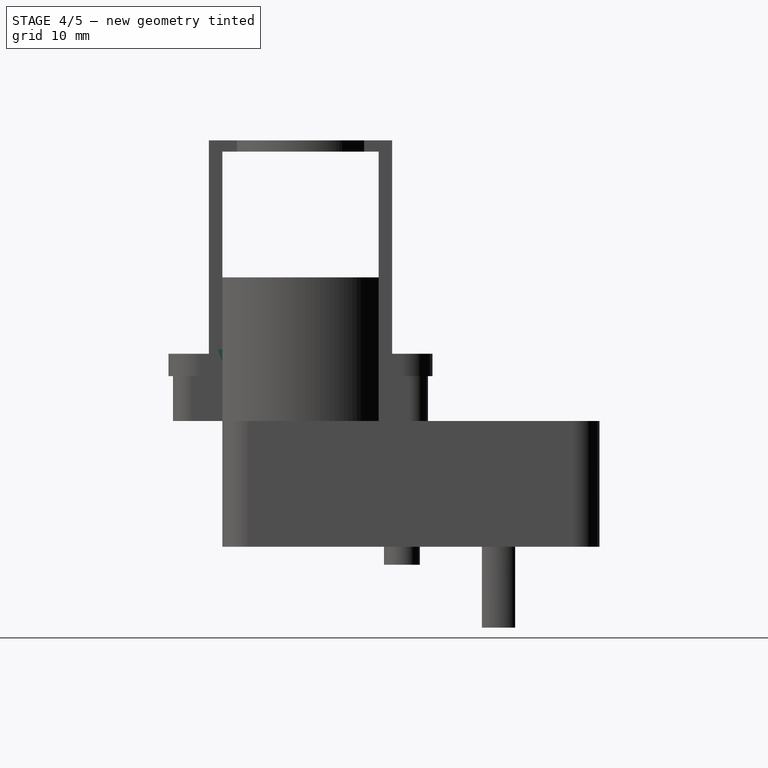
[diagram: stage 4 of 5 — right view after this stage's code; geometry added in this stage tinted green]
FEATURE [PartDesign::Body] Body  label="Metal"
  Group = -> [Sketch,Pad]
  Origin = -> Origin001
  Placement = pos=(0,0,22) rot=(0,0,1;0rad)
  Tip = -> Pad
FEATURE [Sketcher::SketchObject] Sketch001
  AttachmentOffset = pos=(0,0,10) rot=(0,0,1;0rad)
  FullyConstrained = true
  MapMode = 5
  Placement = pos=(0,0,10) rot=(0,0,1;0rad)
  Support = -> [XY_Plane002]
  sketch-geometry (8):
    g0: ArcOfCircle CenterX=0 CenterY=0 CenterZ=0 NormalX=0 NormalY=0 NormalZ=1 AngleXU=0 Radius=10 StartAngle=2.29353 EndAngle=3.98965
    g1: LineSegment StartX=-6.61438 StartY=7.5 StartZ=0 EndX=6.61438 EndY=7.5 EndZ=0
    g2: LineSegment StartX=-6.61438 StartY=-7.5 StartZ=0 EndX=-3.9 EndY=-7.5 EndZ=0
    g3: LineSegment StartX=-3.9 StartY=-7.5 StartZ=0 EndX=-3.9 EndY=-9.2 EndZ=0
    g4: LineSegment StartX=-3.9 StartY=-9.2 StartZ=0 EndX=3.9 EndY=-9.2 EndZ=0
    g5: LineSegment StartX=3.9 StartY=-9.2 StartZ=0 EndX=3.9 EndY=-7.5 EndZ=0
    g6: LineSegment StartX=3.9 StartY=-7.5 StartZ=0 EndX=6.61438 EndY=-7.5 EndZ=0
    g7: ArcOfCircle CenterX=0 CenterY=0 CenterZ=0 NormalX=0 NormalY=0 NormalZ=1 AngleXU=0 Radius=10 StartAngle=5.43512 EndAngle=7.13125
  constraints (24):
    c: Coincident(g0,g-1)
    c: Diameter(g0) = 20
    c: Horizontal(g1)
    c: Horizontal(g2)
    c: Coincident(g2,g3)
    c: Coincident(g3,g4)
    c: Horizontal(g4)
    c: Coincident(g4,g5)
    c: Coincident(g5,g6)
    c: Horizontal(g6)
    c: Coincident(g7,g1)
    c: Coincident(g0,g1)
    c: Equal(g0,g7)
    c: Coincident(g0,g2)
    c: Coincident(g7,g6)
    c: Coincident(g0,g7)
    c: Vertical(g6,g1)
    c: DistanceY(g6,g1) = 15
    c: Vertical(g5)
    c: Vertical(g3)
    c: Symmetric(g2,g5,g-2)
    c: DistanceX(g4,g4) = 7.8
    c: DistanceY(g3,g3) = 1.7
    c: DistanceY(g4) = -9.2
FEATURE [PartDesign::Pad] Pad001
  Direction = (0,0,1)
  Length = 5
  Length2 = 10
  Profile = -> Sketch001
  ReferenceAxis = -> Sketch001 [N_Axis]
  Type = 0
FEATURE [PartDesign::Body] Body002  label="Axis"
  Group = -> [Sketch002,Pad002]
  Origin = -> Origin003
  Placement = pos=(0,0,22) rot=(0,0,1;0rad)
  Tip = -> Pad002
FEATURE [Sketcher::SketchObject] Sketch003
  FullyConstrained = true
  MapMode = 5
  Placement = pos=(0,0,15) rot=(0,0,1;0rad)
  Support = -> [Pad001]
  sketch-geometry (3):
    g0: ArcOfCircle CenterX=0 CenterY=0 CenterZ=0 NormalX=0 NormalY=0 NormalZ=1 AngleXU=0 Radius=4.925 StartAngle=5.37757 EndAngle=10.3304
    g1: LineSegment StartX=-3.03974 StartY=-3.875 StartZ=0 EndX=3.03974 EndY=-3.875 EndZ=0
    g2: GeomPoint X=0 Y=4.925 Z=0
  constraints (8):
    c: Coincident(g0,g-1)
    c: Diameter(g0) = 9.85
    c: Horizontal(g1)
    c: Coincident(g0,g1)
    c: Coincident(g0,g1)
    c: PointOnObject(g2,g0)
    c: PointOnObject(g2,g-2)
    c: DistanceY(g0,g2) = 8.8
FEATURE [PartDesign::Pad] Pad003
  BaseFeature = -> Pad001
  Direction = (0,0,1)
  Length = 2
  Length2 = 10
  Profile = -> Sketch003
  ReferenceAxis = -> Sketch003 [N_Axis]
  Type = 0
FEATURE [Sketcher::SketchObject] Sketch004
  ExternalGeometry = -> [Pad003]
  FullyConstrained = true
  MapMode = 5
  Placement = pos=(0,0,15) rot=(0,0,1;0rad)
  Support = -> [Pad003]
  sketch-geometry (2):
    g0: Circle CenterX=-10 CenterY=0 CenterZ=0 NormalX=0 NormalY=0 NormalZ=1 AngleXU=0 Radius=1.5
    g1: Circle CenterX=10 CenterY=0 CenterZ=0 NormalX=0 NormalY=0 NormalZ=1 AngleXU=0 Radius=1.5
  constraints (6):
    c: PointOnObject(g0,g-1)
    c: PointOnObject(g1,g-4)
    c: Equal(g1,g0)
    c: PointOnObject(g1,g-1)
    c: PointOnObject(g0,g-3)
    c: Diameter(g1) = 3
FEATURE [PartDesign::Fillet] Fillet
  Base = -> Pad003 [Edge16,Edge4]
  BaseFeature = -> Pad003
  Radius = 1.5
  SupportTransform = false
  UseAllEdges = false
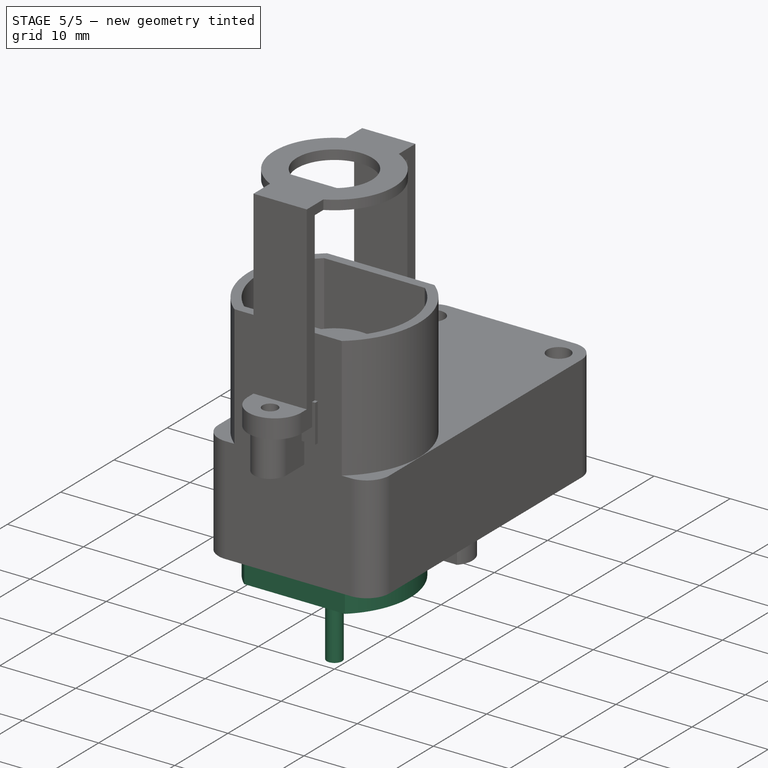
[diagram: stage 5 of 5 — iso view after this stage's code; geometry added in this stage tinted green]
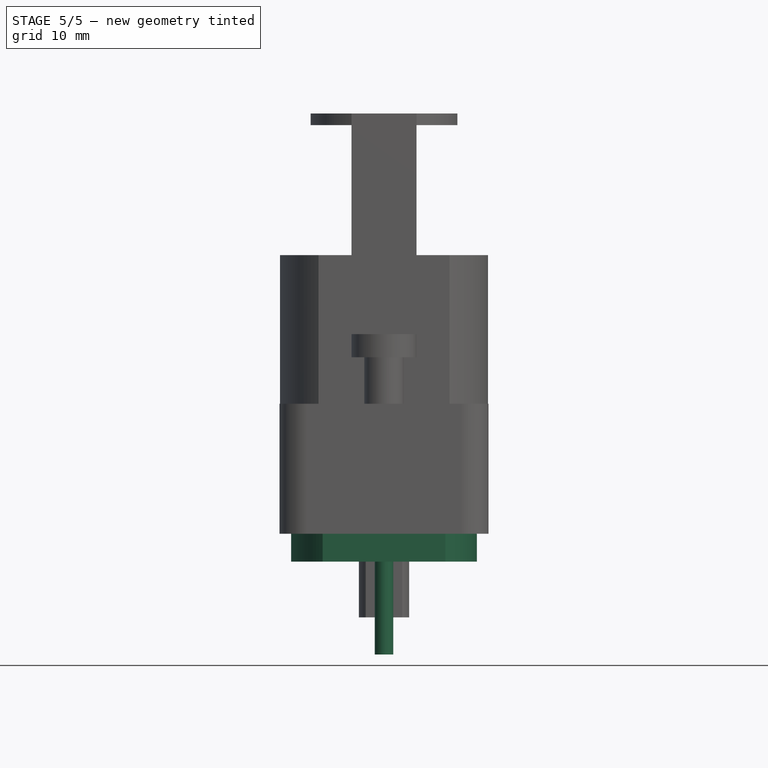
[diagram: stage 5 of 5 — front view after this stage's code; geometry added in this stage tinted green]
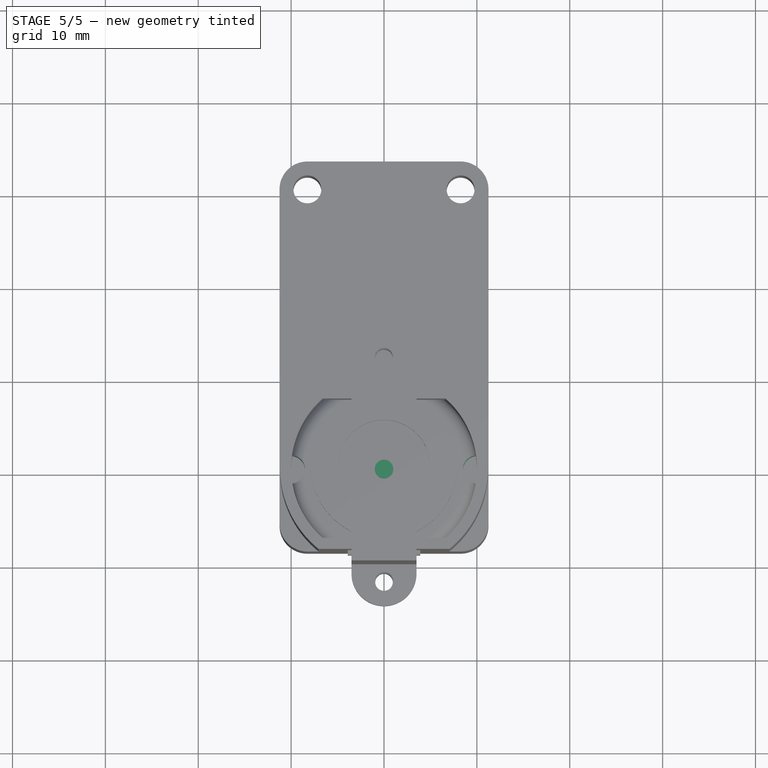
[diagram: stage 5 of 5 — top view after this stage's code; geometry added in this stage tinted green]
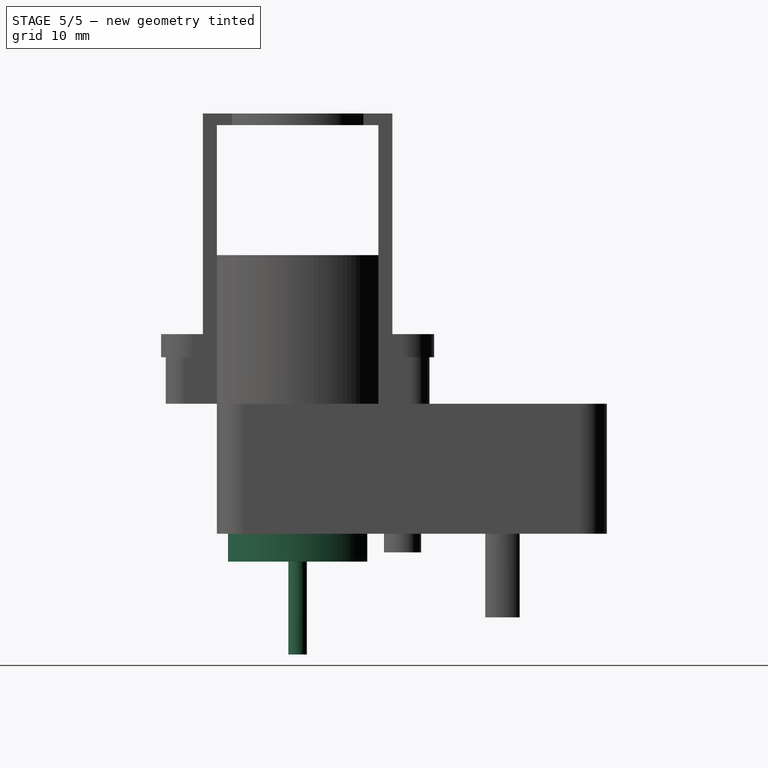
[diagram: stage 5 of 5 — right view after this stage's code; geometry added in this stage tinted green]
FEATURE [Sketcher::SketchObject] Sketch
  FullyConstrained = true
  MapMode = 5
  Support = -> [XY_Plane001]
  sketch-geometry (4):
    g0: ArcOfCircle CenterX=0 CenterY=0 CenterZ=0 NormalX=0 NormalY=0 NormalZ=1 AngleXU=0 Radius=10 StartAngle=2.29353 EndAngle=3.98965
    g1: LineSegment StartX=-6.61438 StartY=7.5 StartZ=0 EndX=6.61438 EndY=7.5 EndZ=0
    g2: LineSegment StartX=6.61438 StartY=-7.5 StartZ=0 EndX=-6.61438 EndY=-7.5 EndZ=0
    g3: ArcOfCircle CenterX=0 CenterY=0 CenterZ=0 NormalX=0 NormalY=0 NormalZ=1 AngleXU=0 Radius=10 StartAngle=5.43512 EndAngle=7.13125
  constraints (12):
    c: Coincident(g0,g-1)
    c: Diameter(g0) = 20
    c: Horizontal(g1)
    c: Horizontal(g2)
    c: Equal(g2,g1)
    c: DistanceY(g2,g1) = 15
    c: Coincident(g3,g1)
    c: Coincident(g0,g1)
    c: Equal(g0,g3)
    c: Coincident(g0,g2)
    c: Coincident(g3,g2)
    c: Coincident(g0,g3)
FEATURE [PartDesign::Pad] Pad
  Direction = (0,0,1)
  Length = 20
  Length2 = 10
  Midplane = true
  Profile = -> Sketch
  ReferenceAxis = -> Sketch [N_Axis]
  Type = 0
FEATURE [Sketcher::SketchObject] Sketch002
  FullyConstrained = true
  MapMode = 5
  Support = -> [XY_Plane003]
  sketch-geometry (1):
    g0: Circle CenterX=0 CenterY=0 CenterZ=0 NormalX=0 NormalY=0 NormalZ=1 AngleXU=0 Radius=1
  constraints (2):
    c: Coincident(g0,g-1)
    c: Diameter(g0) = 2
FEATURE [PartDesign::Pad] Pad002
  Direction = (0,0,1)
  Length = 18
  Length2 = 20
  Profile = -> Sketch002
  ReferenceAxis = -> Sketch002 [N_Axis]
  Type = 4
FEATURE [PartDesign::Pocket] Pocket
  BaseFeature = -> Fillet
  Direction = (0,0,-1)
  Length = 5
  Length2 = 5
  Profile = -> Sketch004
  ReferenceAxis = -> Sketch004 [N_Axis]
  Type = 2
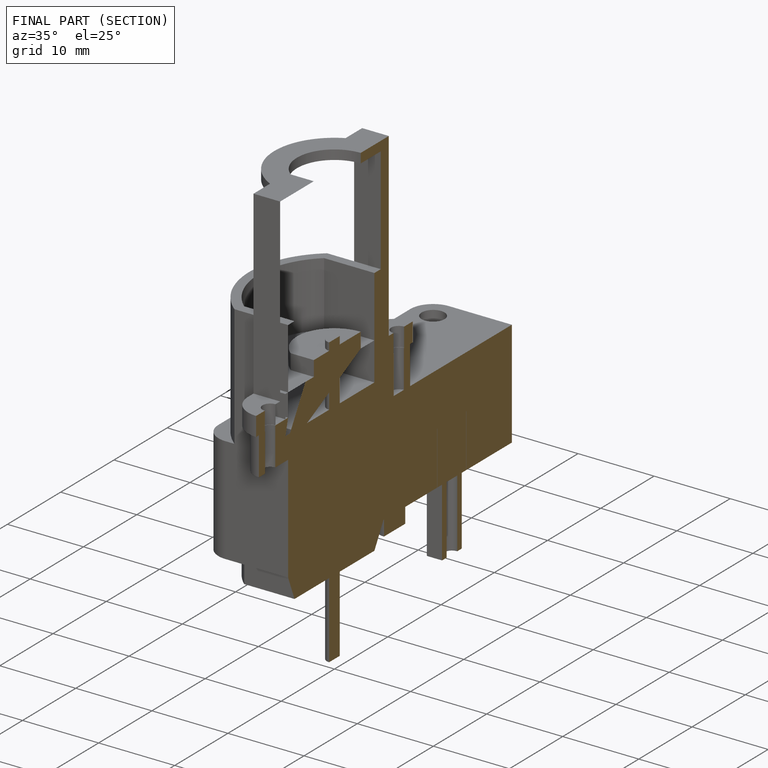
[diagram: finished part — half-section view (interior)]
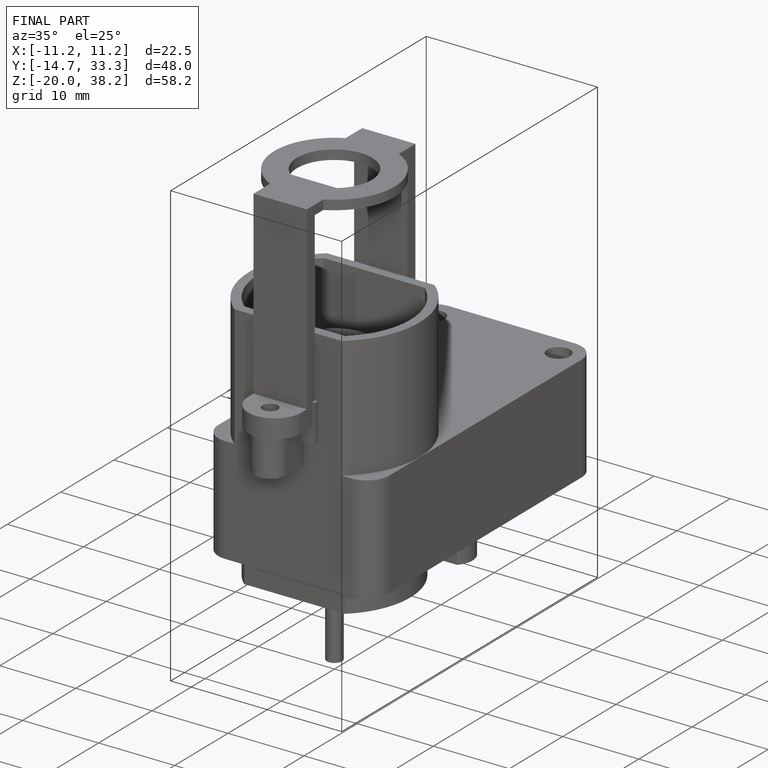
[diagram: finished part — iso view with bounding-box wireframe]
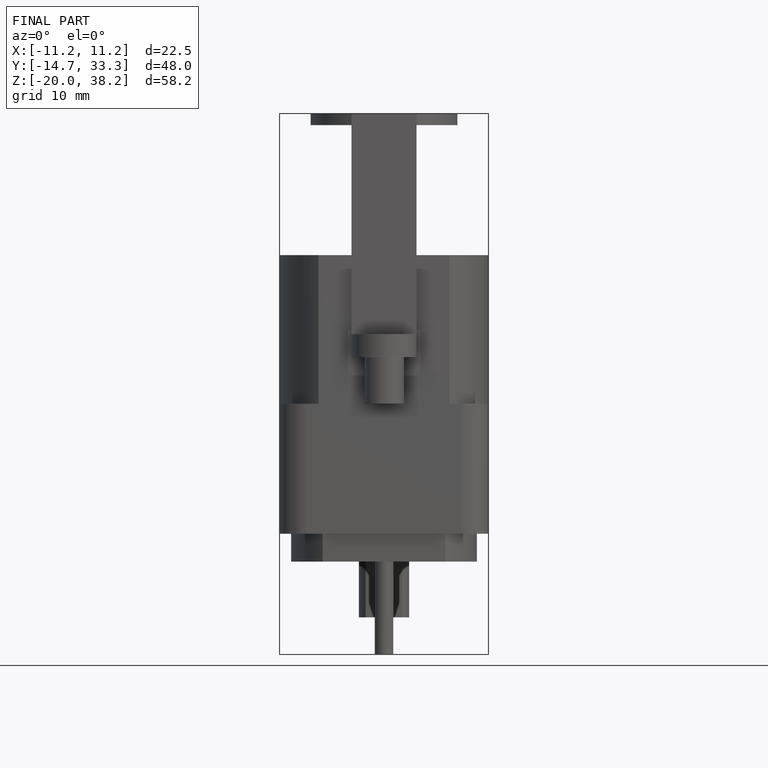
[diagram: finished part — front view with bounding-box wireframe]
